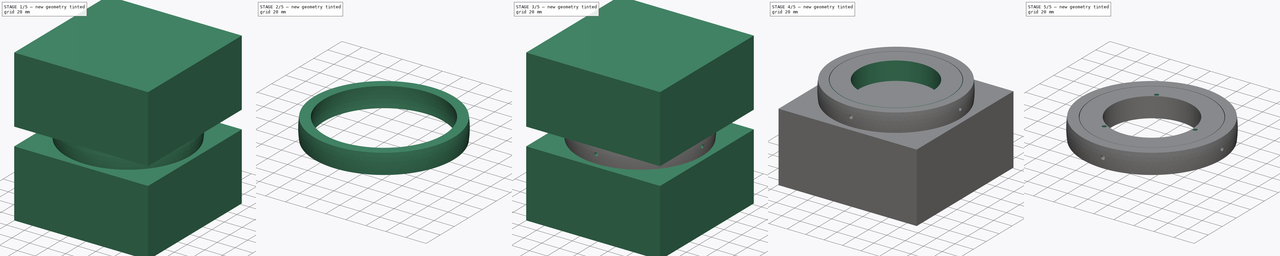
[diagram: build sequence overview — one tinted view per stage of 5, left to right]
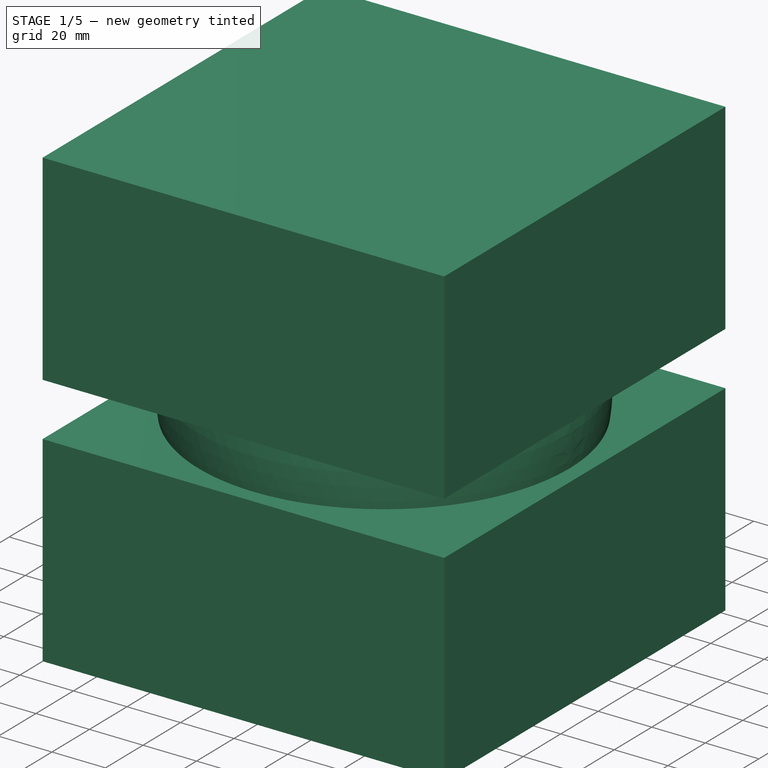
[diagram: stage 1 of 5 — iso view after this stage's code; geometry added in this stage tinted green]
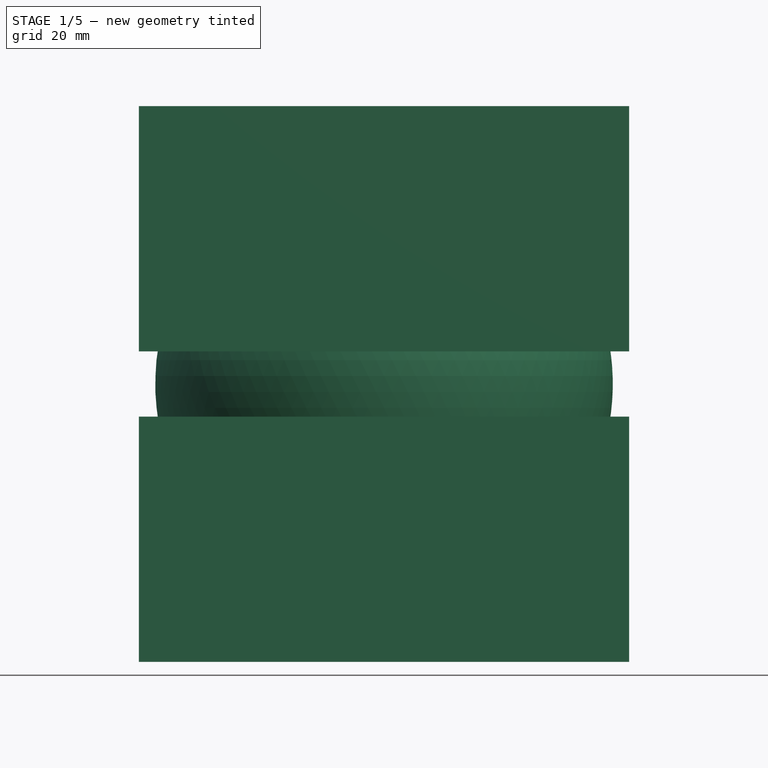
[diagram: stage 1 of 5 — front view after this stage's code; geometry added in this stage tinted green]
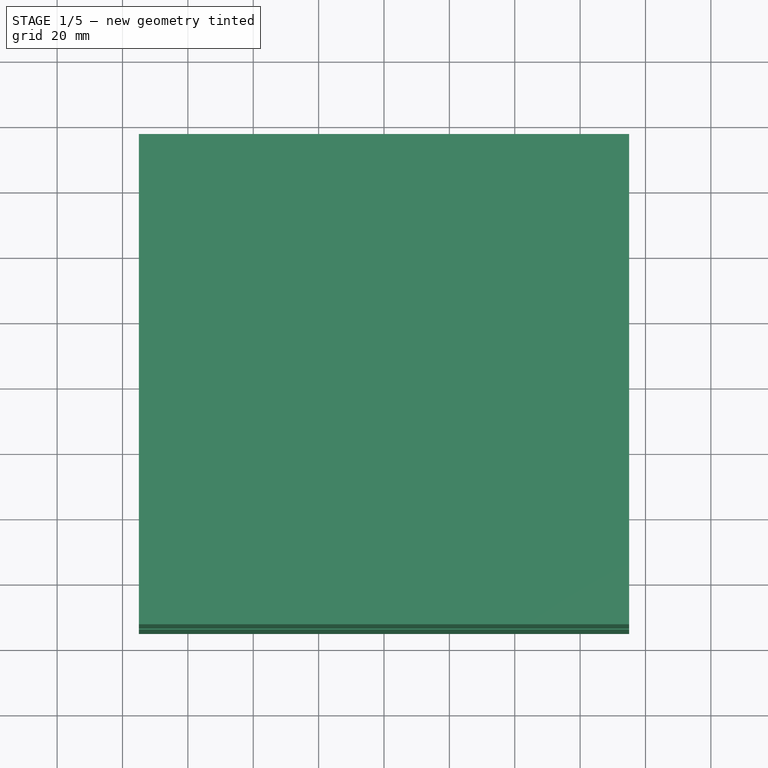
[diagram: stage 1 of 5 — top view after this stage's code; geometry added in this stage tinted green]
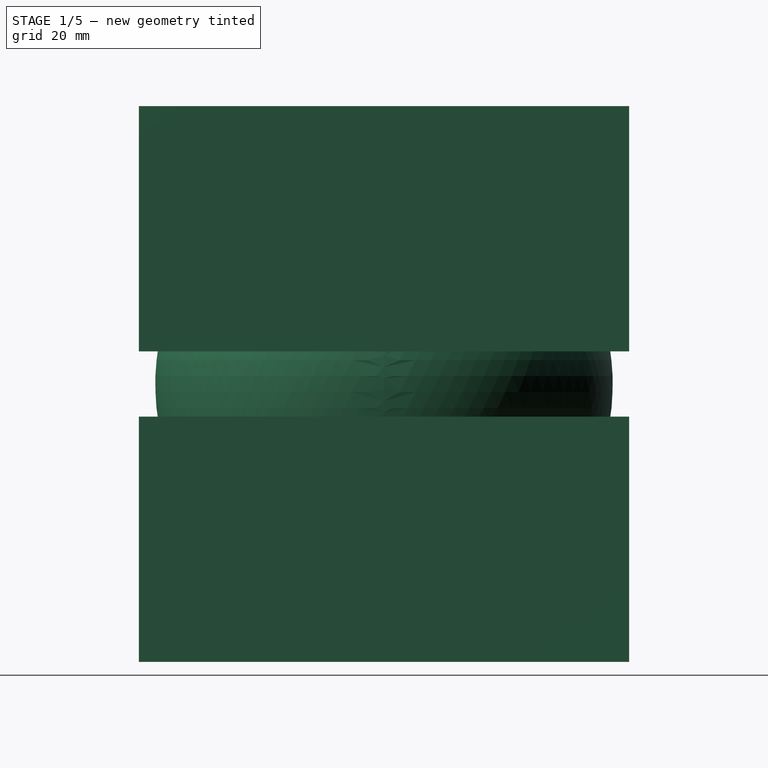
[diagram: stage 1 of 5 — right view after this stage's code; geometry added in this stage tinted green]
FCSTD DOCUMENT  (FreeCAD 1.0R39109 (Git))
Label: 720_orientation_moteurs_sphere
License: All rights reserved
LicenseURL: https://en.wikipedia.org/wiki/All_rights_reserved
objects: Part::Cut×6, Part::Box×4, Part::Sphere×3, Sketcher::SketchObject×3, PartDesign::Pocket×3, PartDesign::FeatureBase×2, PartDesign::Body×2, App::Part×2, Part::Cylinder×1, PartDesign::PolarPattern×1
note: 37 computed .brp shape members not serialized (recipe doc carries the construction recipe); baked Part::Feature solids carry a one-line shape summary decoded from their .brp

FEATURE [Part::Sphere] Sphere001  label="Surface extérieure001"
  Angle1 = -90
  Angle2 = 90
  Angle3 = 360
  AttacherType = Attacher::AttachEngine3D
  Radius = 70
FEATURE [Part::Sphere] Sphere002  label="Trou001"
  Angle1 = -90
  Angle2 = 90
  Angle3 = 360
  AttacherType = Attacher::AttachEngine3D
  Radius = 60.5
FEATURE [Part::Box] Box002  label="Découpe supérieure"
  AttacherType = Attacher::AttachEngine3D
  Height = 75
  Length = 150
  Placement = pos=(-75,-75,10) rot=(0,0,1;0rad)
  Width = 150
FEATURE [Part::Box] Box003  label="Découpe inférieure"
  AttacherType = Attacher::AttachEngine3D
  Height = 75
  Length = 150
  Placement = pos=(-75,-75,-85) rot=(0,0,1;0rad)
  Width = 150
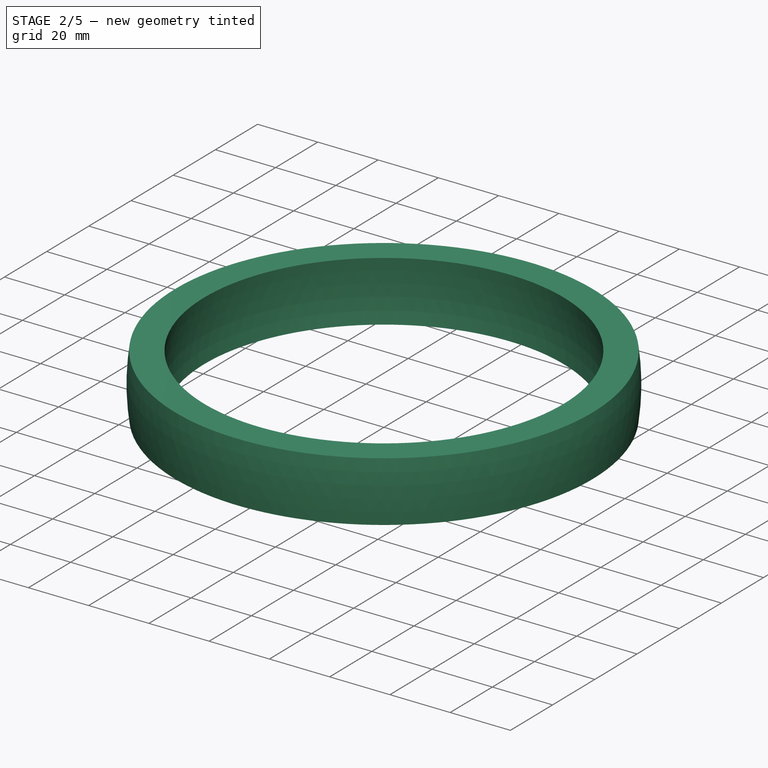
[diagram: stage 2 of 5 — iso view after this stage's code; geometry added in this stage tinted green]
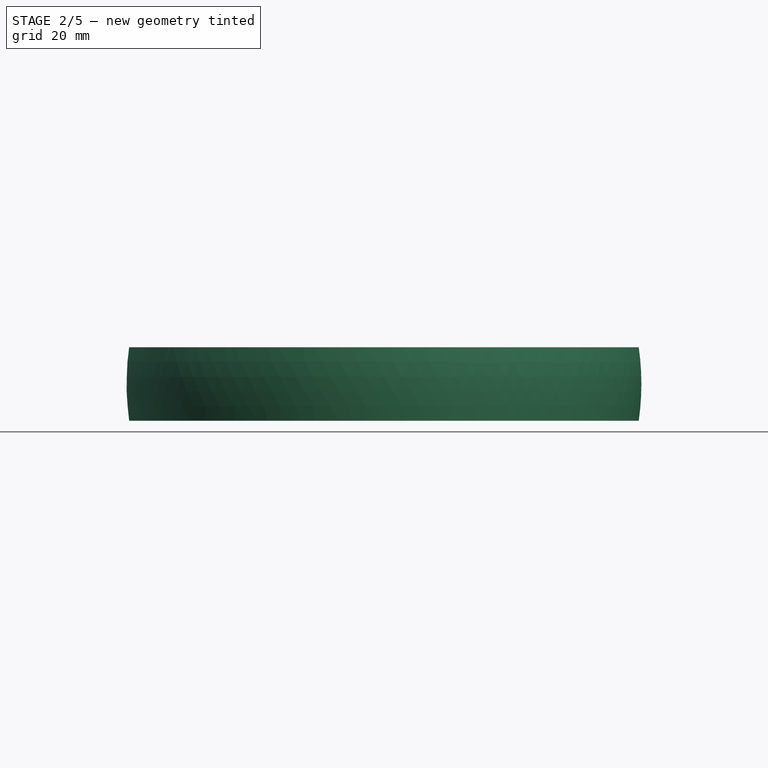
[diagram: stage 2 of 5 — front view after this stage's code; geometry added in this stage tinted green]
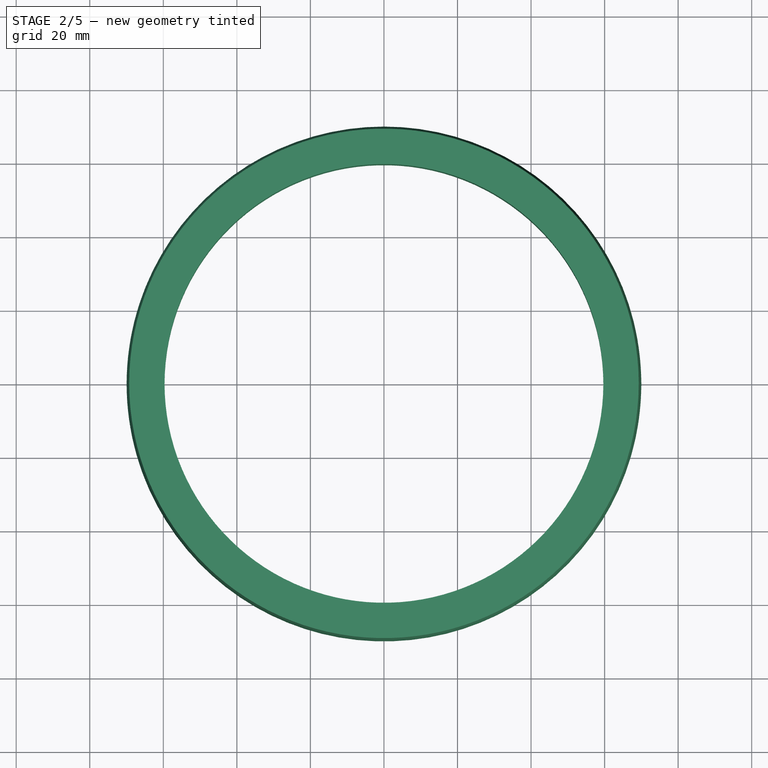
[diagram: stage 2 of 5 — top view after this stage's code; geometry added in this stage tinted green]
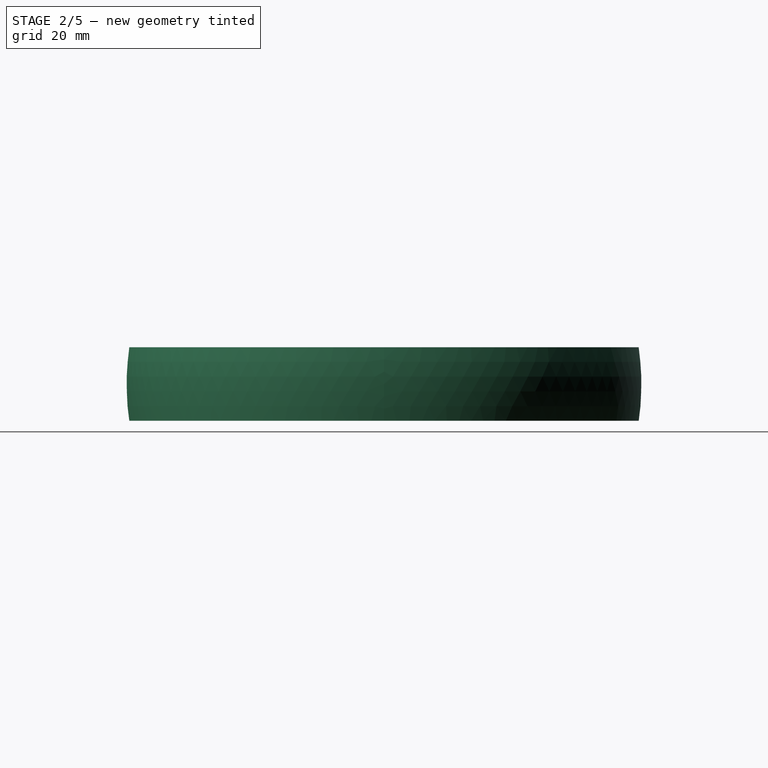
[diagram: stage 2 of 5 — right view after this stage's code; geometry added in this stage tinted green]
FEATURE [Part::Cut] Cut003
  Base = -> Sphere001
  Tool = -> Sphere002
FEATURE [Part::Cut] Cut004
  Base = -> Cut003
  Tool = -> Box002
FEATURE [Part::Cut] Cut005  label="Anneau ext"
  Base = -> Cut004
  Tool = -> Box003
FEATURE [PartDesign::FeatureBase] BaseFeature
  BaseFeature = -> Cut005
  Suppressed = false
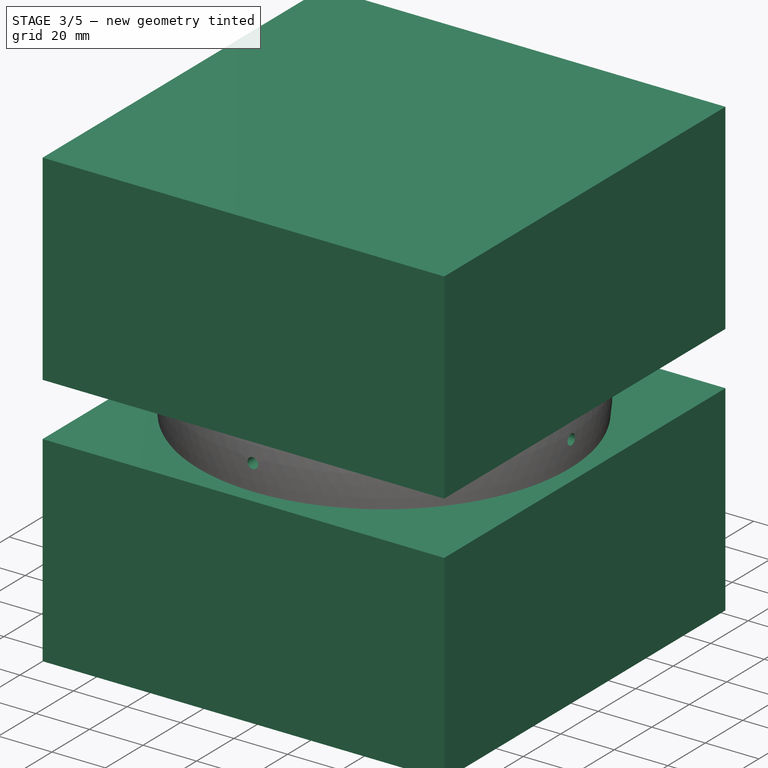
[diagram: stage 3 of 5 — iso view after this stage's code; geometry added in this stage tinted green]
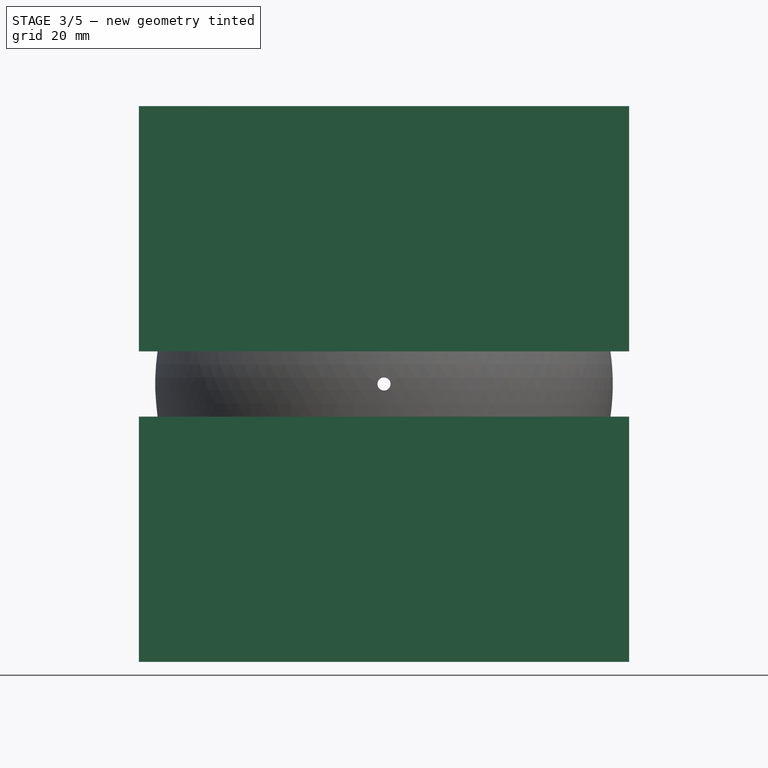
[diagram: stage 3 of 5 — front view after this stage's code; geometry added in this stage tinted green]
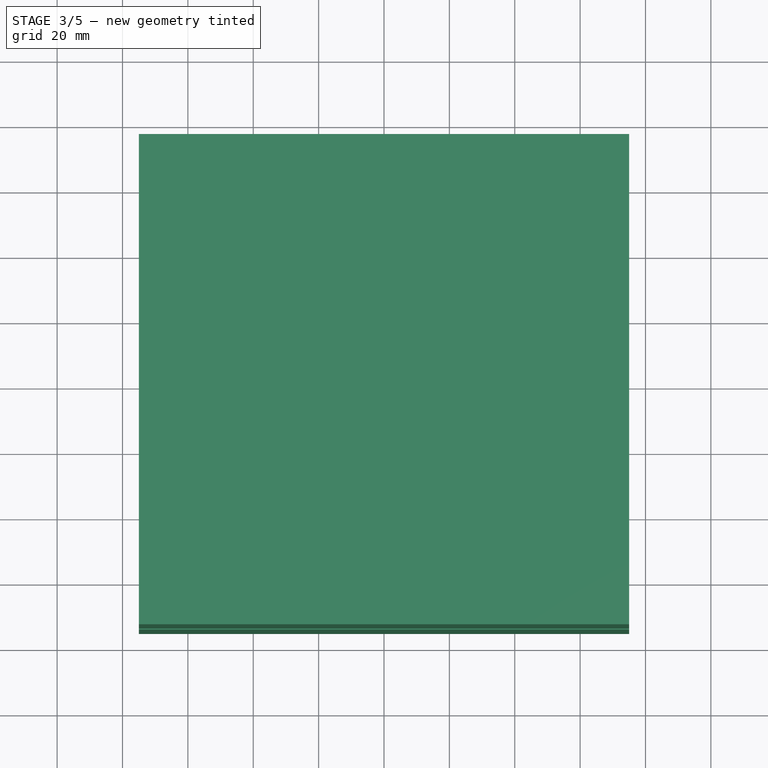
[diagram: stage 3 of 5 — top view after this stage's code; geometry added in this stage tinted green]
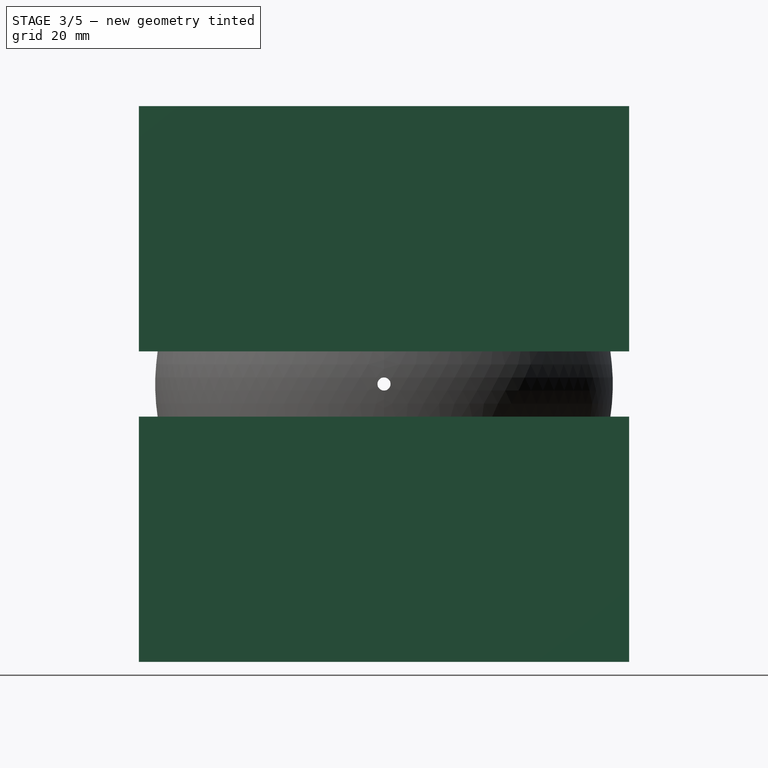
[diagram: stage 3 of 5 — right view after this stage's code; geometry added in this stage tinted green]
FEATURE [Part::Box] Box  label="Découpe haute"
  AttacherType = Attacher::AttachEngine3D
  Height = 75
  Length = 150
  Placement = pos=(-75,-75,10) rot=(0,0,1;0rad)
  Width = 150
FEATURE [Part::Box] Box001  label="Découpe basse"
  AttacherType = Attacher::AttachEngine3D
  Height = 75
  Length = 150
  Placement = pos=(-75,-75,-85) rot=(0,0,1;0rad)
  Width = 150
FEATURE [PartDesign::Body] Body001  label="Corps001"
  AllowCompound = false
  BaseFeature = -> Cut002
  Group = -> [BaseFeature001,Sketch,Pocket,PolarPattern]
  Origin = -> Origin003
  Tip = -> PolarPattern
FEATURE [App::Part] Part  label="Anneau intérieure"
  Group = -> [Body001]
  Origin = -> Origin
FEATURE [Sketcher::SketchObject] Sketch001
  ArcFitTolerance = 1e-06
  AttachmentSupport = -> [YZ_Plane002]
  FullyConstrained = true
  MakeInternals = false
  MapMode = 5
  Placement = pos=(0,0,0) rot=(0.57735,0.57735,0.57735;2.0944rad)
  sketch-geometry (1):
    g0: Circle CenterX=0 CenterY=0 CenterZ=0 NormalX=0 NormalY=0 NormalZ=1 AngleXU=0 Radius=2
  constraints (2):
    c: Coincident(g0,g-1)
    c: Radius(g0) = 2
FEATURE [PartDesign::Pocket] Pocket001
  BaseFeature = -> BaseFeature
  Direction = (-1,0,0)
  Length = 10
  Length2 = 5
  Midplane = true
  Profile = -> Sketch001
  ReferenceAxis = -> Sketch001 [N_Axis]
  Refine = true
  Suppressed = false
  Type = 1
FEATURE [Sketcher::SketchObject] Sketch002
  ArcFitTolerance = 1e-06
  AttachmentSupport = -> [XZ_Plane002]
  FullyConstrained = true
  MakeInternals = false
  MapMode = 5
  Placement = pos=(0,0,0) rot=(1,0,0;1.5708rad)
  sketch-geometry (1):
    g0: Circle CenterX=0 CenterY=0 CenterZ=0 NormalX=0 NormalY=0 NormalZ=1 AngleXU=0 Radius=2
  constraints (2):
    c: Coincident(g0,g-1)
    c: Radius(g0) = 2
FEATURE [PartDesign::Pocket] Pocket002
  BaseFeature = -> Pocket001
  Direction = (0,1,-2e-16)
  Length = 5
  Length2 = 5
  Midplane = true
  Profile = -> Sketch002
  ReferenceAxis = -> Sketch002 [N_Axis]
  Refine = true
  Suppressed = false
  Type = 1
FEATURE [PartDesign::Body] Body  label="Corps"
  AllowCompound = false
  BaseFeature = -> Cut005
  Group = -> [BaseFeature,Sketch001,Pocket001,Sketch002,Pocket002]
  Origin = -> Origin002
  Tip = -> Pocket002
FEATURE [App::Part] Part001  label="Anneau extérieure"
  Group = -> [Body]
  Origin = -> Origin001
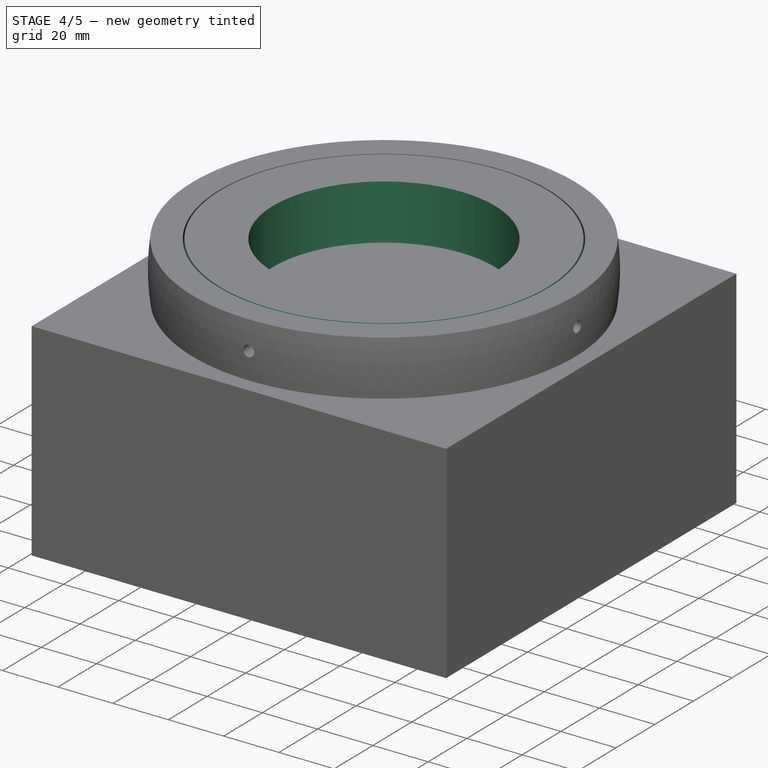
[diagram: stage 4 of 5 — iso view after this stage's code; geometry added in this stage tinted green]
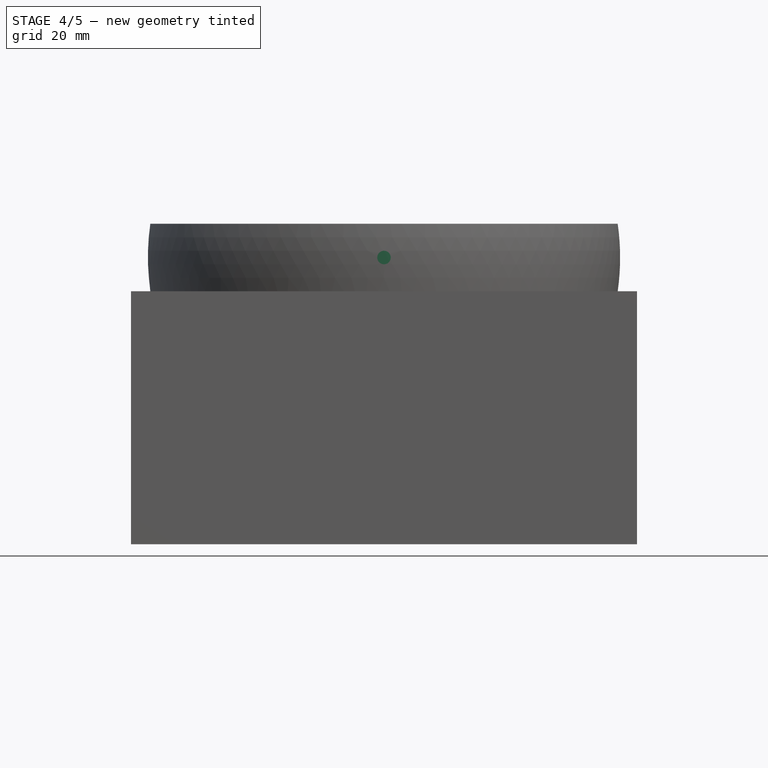
[diagram: stage 4 of 5 — front view after this stage's code; geometry added in this stage tinted green]
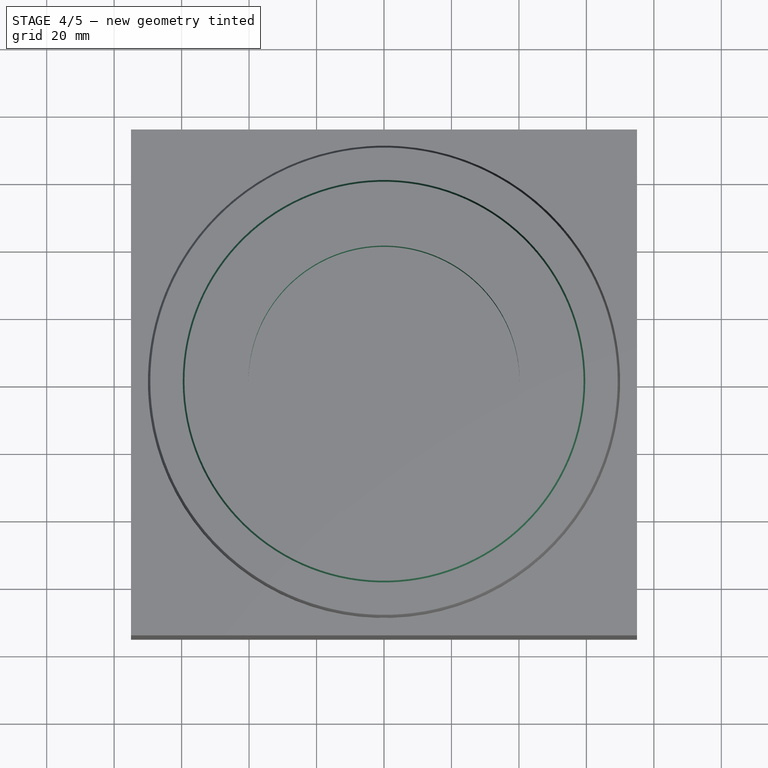
[diagram: stage 4 of 5 — top view after this stage's code; geometry added in this stage tinted green]
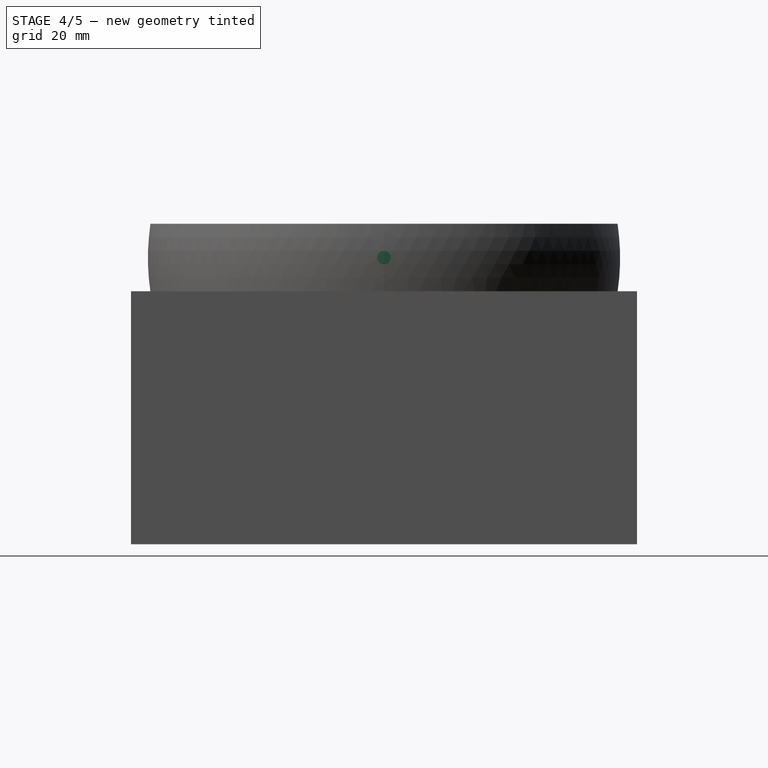
[diagram: stage 4 of 5 — right view after this stage's code; geometry added in this stage tinted green]
FEATURE [Part::Sphere] Sphere  label="Surface extérieure"
  Angle1 = -90
  Angle2 = 90
  Angle3 = 360
  AttacherType = Attacher::AttachEngine3D
  Radius = 60
FEATURE [Part::Cylinder] Cylinder  label="Trou"
  Angle = 360
  AttacherType = Attacher::AttachEngine3D
  FirstAngle = 0
  Height = 100
  Placement = pos=(0,0,-50) rot=(0,0,1;0rad)
  Radius = 40.2
  SecondAngle = 0
FEATURE [Part::Cut] Cut
  Base = -> Sphere
  Tool = -> Cylinder
FEATURE [Part::Cut] Cut001
  Base = -> Cut
  Tool = -> Box
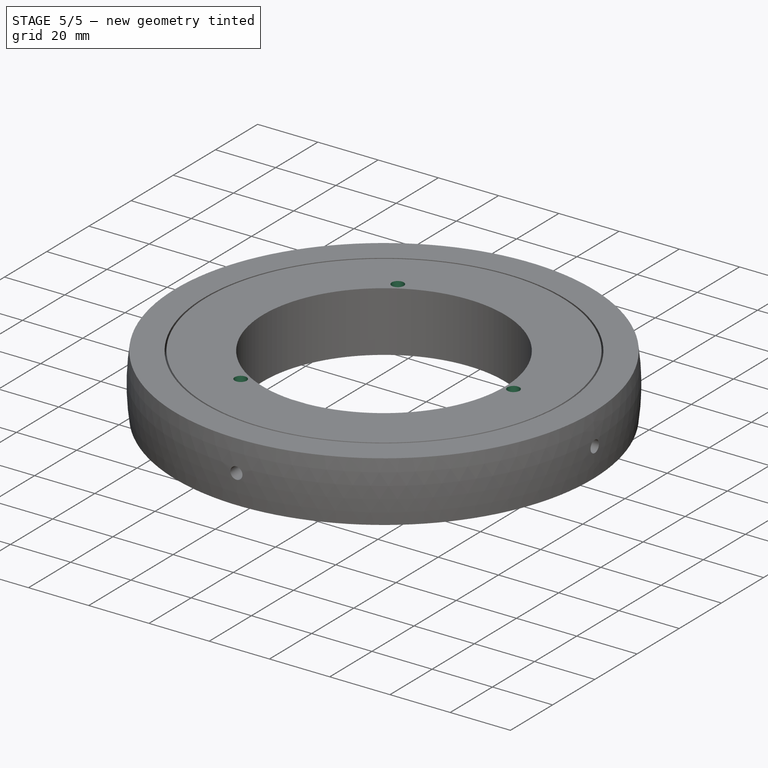
[diagram: stage 5 of 5 — iso view after this stage's code; geometry added in this stage tinted green]
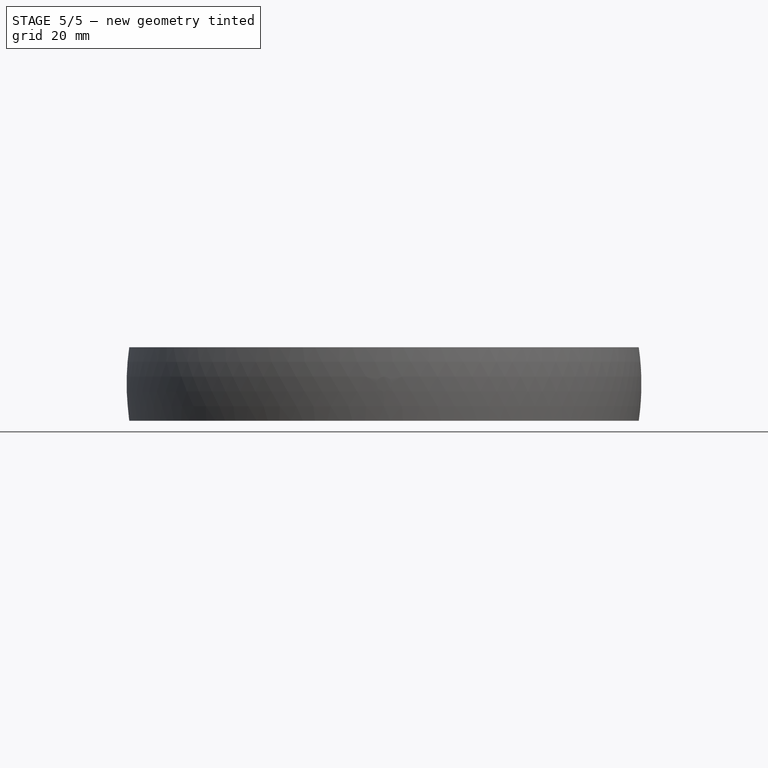
[diagram: stage 5 of 5 — front view after this stage's code; geometry added in this stage tinted green]
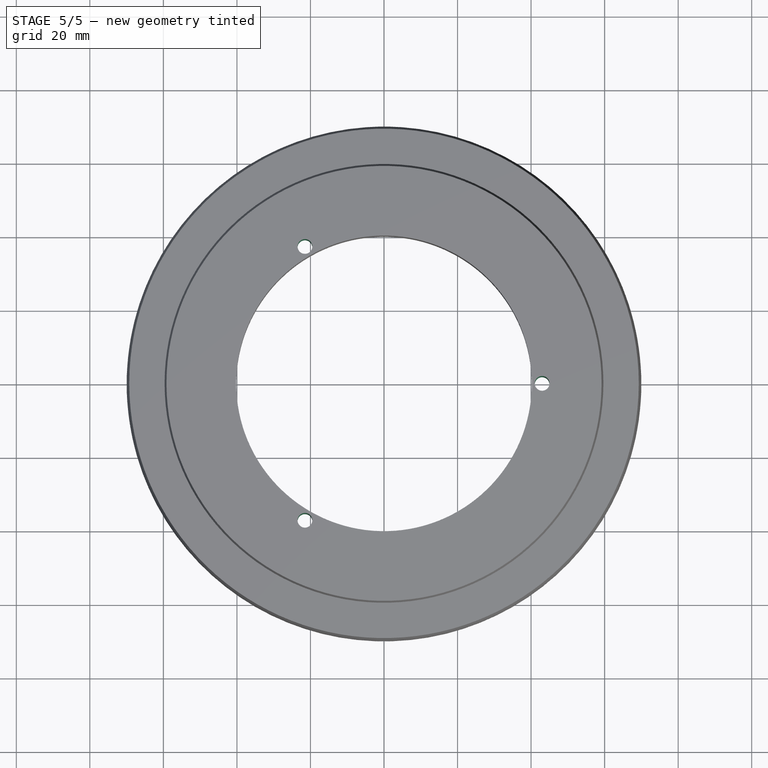
[diagram: stage 5 of 5 — top view after this stage's code; geometry added in this stage tinted green]
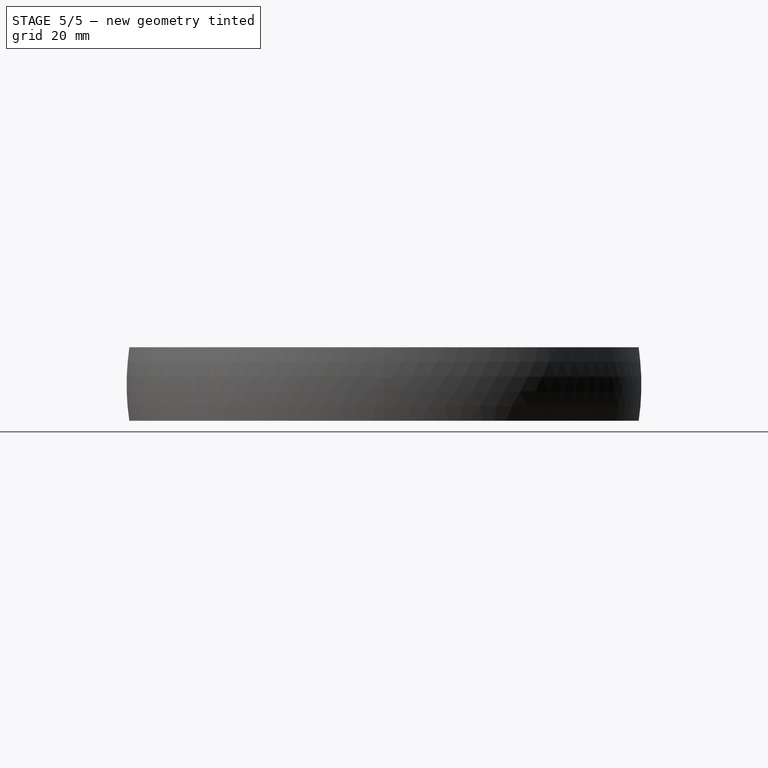
[diagram: stage 5 of 5 — right view after this stage's code; geometry added in this stage tinted green]
FEATURE [Part::Cut] Cut002  label="Anneau int"
  Base = -> Cut001
  Tool = -> Box001
FEATURE [PartDesign::FeatureBase] BaseFeature001
  BaseFeature = -> Cut002
  Suppressed = false
FEATURE [Sketcher::SketchObject] Sketch
  ArcFitTolerance = 1e-06
  AttachmentOffset = pos=(43,0,0) rot=(0,0,1;0rad)
  AttachmentSupport = -> [XY_Plane003]
  FullyConstrained = true
  MakeInternals = false
  MapMode = 5
  Placement = pos=(43,0,0) rot=(0,0,1;0rad)
  sketch-geometry (1):
    g0: Circle CenterX=0 CenterY=0 CenterZ=0 NormalX=0 NormalY=0 NormalZ=1 AngleXU=0 Radius=2
  constraints (2):
    c: Coincident(g0,g-1)
    c: Radius(g0) = 2
FEATURE [PartDesign::Pocket] Pocket
  BaseFeature = -> BaseFeature001
  Direction = (0,0,-1)
  Length = 5
  Length2 = 5
  Midplane = true
  Profile = -> Sketch
  ReferenceAxis = -> Sketch [N_Axis]
  Refine = true
  Suppressed = false
  Type = 1
FEATURE [PartDesign::PolarPattern] PolarPattern
  Angle = 360
  Axis = -> Z_Axis003
  BaseFeature = -> Pocket
  Mode = 0
  Occurrences = 3
  Offset = 120
  Originals = -> [Pocket]
  Refine = true
  Suppressed = false
  TransformMode = 0
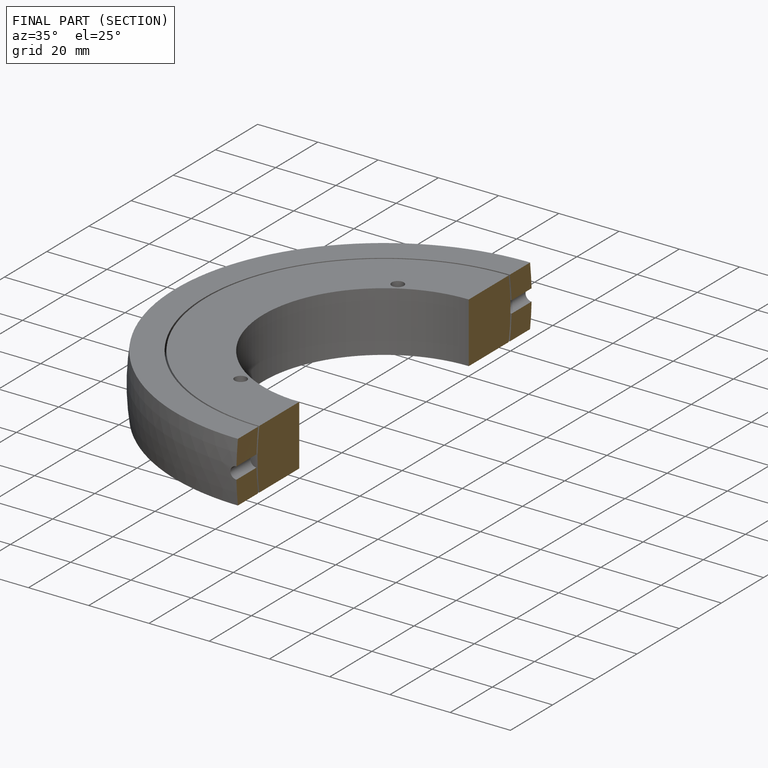
[diagram: finished part — half-section view (interior)]
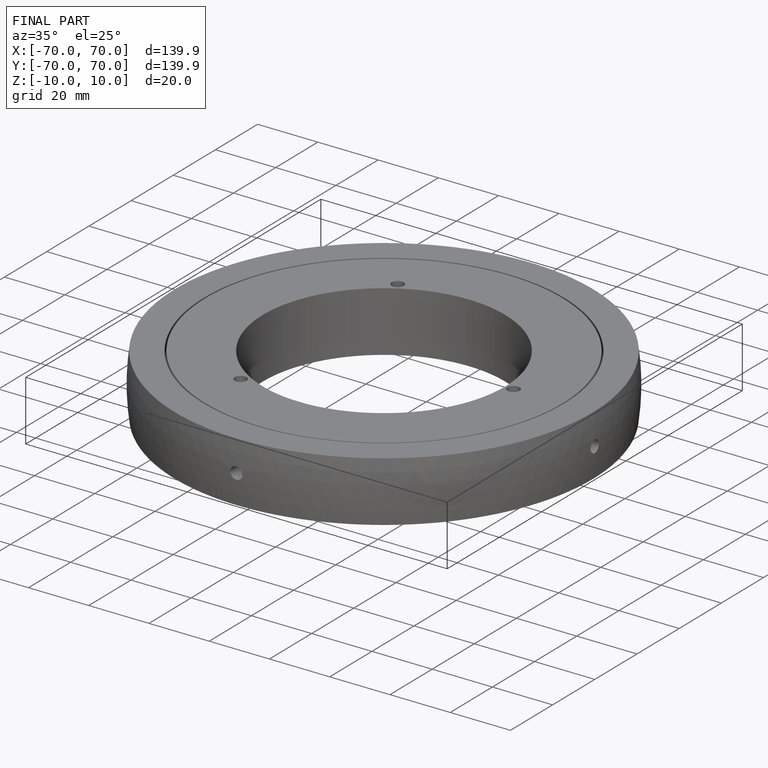
[diagram: finished part — iso view with bounding-box wireframe]
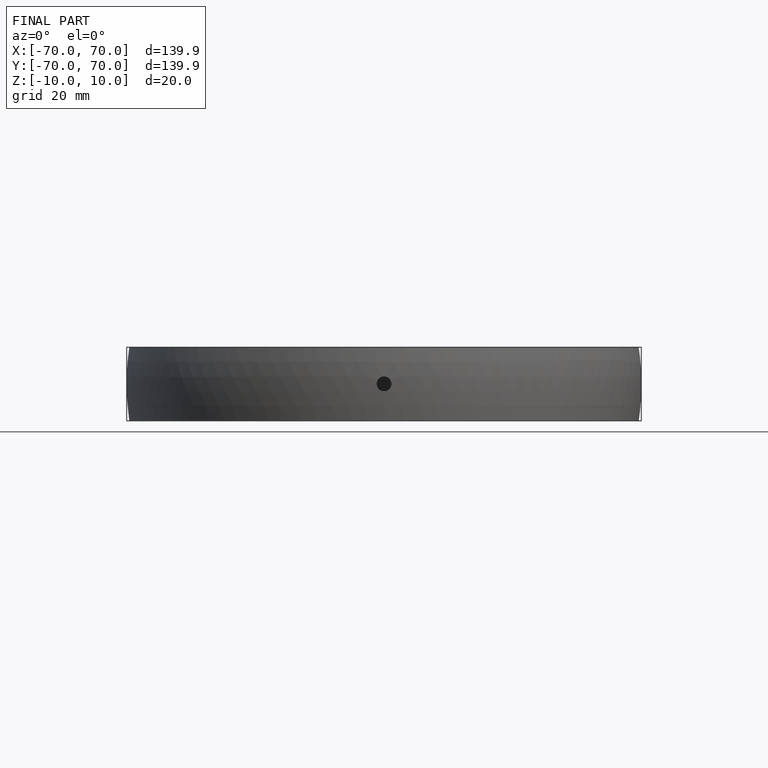
[diagram: finished part — front view with bounding-box wireframe]
